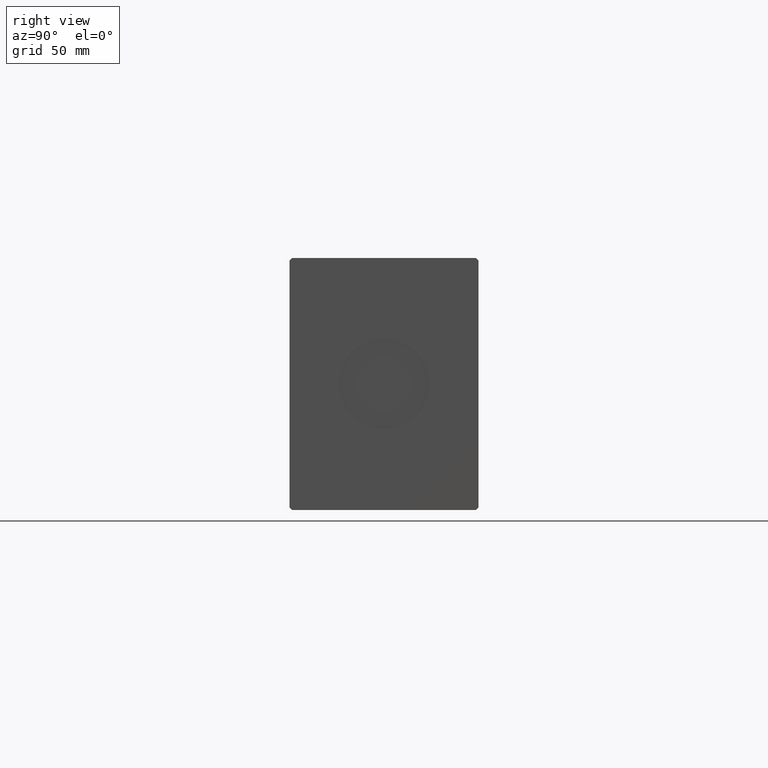
[diagram: clean part render]
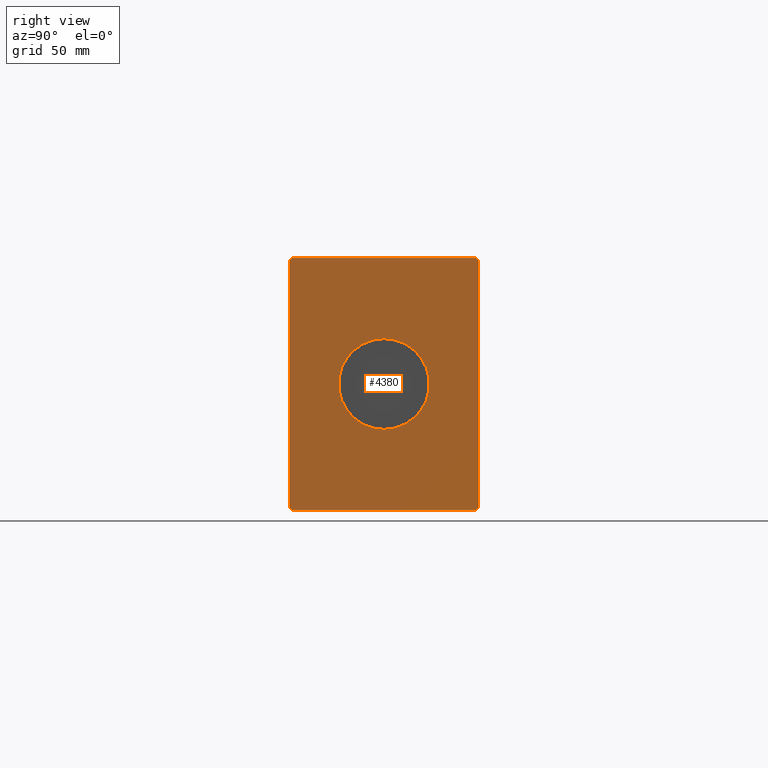
[diagram: same view with one face highlighted and labeled with its STEP entity id]
A machine part, right view. The second image highlights one B-rep face of the part: STEP entity #4380.
In plain terms, the highlighted planar face has unit normal (1, 0, 0).
Its self-contained STEP definition (entity closure, byte-faithful):
#470 = VERTEX_POINT ( 'NONE', #20750 ) ;
#496 = EDGE_LOOP ( 'NONE', ( #25397, #21045, #35513, #5297, #35614, #37641, #6014, #15157 ) ) ;
#1237 = FACE_OUTER_BOUND ( 'NONE', #496, .T. ) ;
#2446 = EDGE_CURVE ( 'NONE', #36813, #5976, #31207, .T. ) ;
#3912 = CARTESIAN_POINT ( 'NONE',  ( 262.0000000000000000, 36.50000000000000711, -50.00000000000000000 ) ) ;
#4378 = EDGE_LOOP ( 'NONE', ( #31203, #30687 ) ) ;
#4380 = ADVANCED_FACE ( 'NONE', ( #15079, #1237 ), #13896, .T. ) ;
#4552 = CARTESIAN_POINT ( 'NONE',  ( 262.0000000000000000, 37.50000000000000711, -49.00000000000000000 ) ) ;
#4694 = LINE ( 'NONE', #10507, #26814 ) ;
#4700 = VERTEX_POINT ( 'NONE', #15644 ) ;
#5297 = ORIENTED_EDGE ( 'NONE', *, *, #24508, .T. ) ;
#5820 = CARTESIAN_POINT ( 'NONE',  ( 262.0000000000000000, -36.50000000000001421, 49.99999999999998579 ) ) ;
#5976 = VERTEX_POINT ( 'NONE', #37366 ) ;
#6014 = ORIENTED_EDGE ( 'NONE', *, *, #38800, .T. ) ;
#6068 = DIRECTION ( 'NONE',  ( 1.000000000000000000, 0.000000000000000000, 0.000000000000000000 ) ) ;
#6364 = EDGE_CURVE ( 'NONE', #470, #8159, #29847, .T. ) ;
#7433 = VECTOR ( 'NONE', #8482, 1000.000000000000000 ) ;
#8057 = AXIS2_PLACEMENT_3D ( 'NONE', #40362, #27507, #15276 ) ;
#8159 = VERTEX_POINT ( 'NONE', #35633 ) ;
#8482 = DIRECTION ( 'NONE',  ( 0.000000000000000000, 0.000000000000000000, 1.000000000000000000 ) ) ;
#9042 = CARTESIAN_POINT ( 'NONE',  ( 262.0000000000000000, 36.50000000000000711, -50.00000000000000000 ) ) ;
#9971 = CARTESIAN_POINT ( 'NONE',  ( 262.0000000000000000, -36.50000000000001421, 49.99999999999998579 ) ) ;
#10507 = CARTESIAN_POINT ( 'NONE',  ( 262.0000000000000000, 37.50000000000000711, 49.00000000000000000 ) ) ;
#10823 = LINE ( 'NONE', #16860, #36938 ) ;
#11538 = LINE ( 'NONE', #9042, #11645 ) ;
#11645 = VECTOR ( 'NONE', #37034, 1000.000000000000114 ) ;
#11793 = DIRECTION ( 'NONE',  ( 0.000000000000000000, 1.000000000000000000, 0.000000000000000000 ) ) ;
#12039 = DIRECTION ( 'NONE',  ( 0.000000000000000000, -0.7071067811865474617, -0.7071067811865474617 ) ) ;
#13605 = CARTESIAN_POINT ( 'NONE',  ( 262.0000000000000000, 2.204364238465235428E-15, 18.00000000000000000 ) ) ;
#13722 = EDGE_CURVE ( 'NONE', #8159, #20046, #4694, .T. ) ;
#13896 = PLANE ( 'NONE',  #8057 ) ;
#13939 = CARTESIAN_POINT ( 'NONE',  ( 262.0000000000000000, -37.50000000000001421, 48.99999999999998579 ) ) ;
#15005 = DIRECTION ( 'NONE',  ( 0.000000000000000000, 0.7071067811865500152, -0.7071067811865451302 ) ) ;
#15079 = FACE_BOUND ( 'NONE', #4378, .T. ) ;
#15157 = ORIENTED_EDGE ( 'NONE', *, *, #6364, .T. ) ;
#15207 = LINE ( 'NONE', #30543, #22959 ) ;
#15276 = DIRECTION ( 'NONE',  ( 0.000000000000000000, 0.000000000000000000, -1.000000000000000000 ) ) ;
#15356 = LINE ( 'NONE', #5820, #28112 ) ;
#15644 = CARTESIAN_POINT ( 'NONE',  ( 262.0000000000000000, -37.50000000000001421, 48.99999999999998579 ) ) ;
#16320 = VERTEX_POINT ( 'NONE', #19634 ) ;
#16648 = LINE ( 'NONE', #13939, #37779 ) ;
#16679 = CARTESIAN_POINT ( 'NONE',  ( 262.0000000000000000, 0.000000000000000000, 0.000000000000000000 ) ) ;
#16860 = CARTESIAN_POINT ( 'NONE',  ( 262.0000000000000000, 36.50000000000000711, 50.00000000000000000 ) ) ;
#17608 = LINE ( 'NONE', #40196, #30746 ) ;
#19634 = CARTESIAN_POINT ( 'NONE',  ( 262.0000000000000000, -36.50000000000000711, -50.00000000000000000 ) ) ;
#19695 = EDGE_CURVE ( 'NONE', #22473, #16320, #15207, .T. ) ;
#20046 = VERTEX_POINT ( 'NONE', #20961 ) ;
#20750 = CARTESIAN_POINT ( 'NONE',  ( 262.0000000000000000, 37.50000000000000711, -49.00000000000000000 ) ) ;
#20961 = CARTESIAN_POINT ( 'NONE',  ( 262.0000000000000000, 36.50000000000000711, 50.00000000000000000 ) ) ;
#21045 = ORIENTED_EDGE ( 'NONE', *, *, #21684, .T. ) ;
#21210 = CARTESIAN_POINT ( 'NONE',  ( 262.0000000000000000, 0.000000000000000000, 0.000000000000000000 ) ) ;
#21684 = EDGE_CURVE ( 'NONE', #20046, #32580, #10823, .T. ) ;
#22473 = VERTEX_POINT ( 'NONE', #34505 ) ;
#22640 = DIRECTION ( 'NONE',  ( 0.000000000000000000, -1.000000000000000000, -1.901066822988281457E-16 ) ) ;
#22959 = VECTOR ( 'NONE', #15005, 1000.000000000000114 ) ;
#23365 = EDGE_CURVE ( 'NONE', #5976, #36813, #27122, .T. ) ;
#23495 = DIRECTION ( 'NONE',  ( 1.000000000000000000, 0.000000000000000000, 0.000000000000000000 ) ) ;
#24508 = EDGE_CURVE ( 'NONE', #4700, #22473, #16648, .T. ) ;
#25397 = ORIENTED_EDGE ( 'NONE', *, *, #13722, .T. ) ;
#26814 = VECTOR ( 'NONE', #33099, 1000.000000000000114 ) ;
#27122 = CIRCLE ( 'NONE', #38361, 18.00000000000000000 ) ;
#27507 = DIRECTION ( 'NONE',  ( 1.000000000000000000, 0.000000000000000000, 0.000000000000000000 ) ) ;
#28112 = VECTOR ( 'NONE', #12039, 1000.000000000000114 ) ;
#29321 = DIRECTION ( 'NONE',  ( 0.000000000000000000, 0.000000000000000000, -1.000000000000000000 ) ) ;
#29847 = LINE ( 'NONE', #4552, #7433 ) ;
#29997 = VERTEX_POINT ( 'NONE', #3912 ) ;
#30543 = CARTESIAN_POINT ( 'NONE',  ( 262.0000000000000000, -37.50000000000001421, -49.00000000000000000 ) ) ;
#30687 = ORIENTED_EDGE ( 'NONE', *, *, #2446, .F. ) ;
#30746 = VECTOR ( 'NONE', #11793, 1000.000000000000000 ) ;
#31203 = ORIENTED_EDGE ( 'NONE', *, *, #23365, .F. ) ;
#31207 = CIRCLE ( 'NONE', #33178, 18.00000000000000000 ) ;
#31988 = DIRECTION ( 'NONE',  ( 0.000000000000000000, 0.000000000000000000, -1.000000000000000000 ) ) ;
#32458 = EDGE_CURVE ( 'NONE', #16320, #29997, #17608, .T. ) ;
#32580 = VERTEX_POINT ( 'NONE', #9971 ) ;
#33099 = DIRECTION ( 'NONE',  ( 0.000000000000000000, -0.7071067811865474617, 0.7071067811865474617 ) ) ;
#33178 = AXIS2_PLACEMENT_3D ( 'NONE', #21210, #6068, #33861 ) ;
#33861 = DIRECTION ( 'NONE',  ( 0.000000000000000000, 0.000000000000000000, -1.000000000000000000 ) ) ;
#34195 = EDGE_CURVE ( 'NONE', #32580, #4700, #15356, .T. ) ;
#34505 = CARTESIAN_POINT ( 'NONE',  ( 262.0000000000000000, -37.50000000000001421, -49.00000000000000000 ) ) ;
#35513 = ORIENTED_EDGE ( 'NONE', *, *, #34195, .T. ) ;
#35614 = ORIENTED_EDGE ( 'NONE', *, *, #19695, .T. ) ;
#35633 = CARTESIAN_POINT ( 'NONE',  ( 262.0000000000000000, 37.50000000000000711, 49.00000000000000000 ) ) ;
#36813 = VERTEX_POINT ( 'NONE', #13605 ) ;
#36938 = VECTOR ( 'NONE', #22640, 1000.000000000000000 ) ;
#37034 = DIRECTION ( 'NONE',  ( 0.000000000000000000, 0.7071067811865474617, 0.7071067811865474617 ) ) ;
#37366 = CARTESIAN_POINT ( 'NONE',  ( 262.0000000000000000, 0.000000000000000000, -18.00000000000000000 ) ) ;
#37641 = ORIENTED_EDGE ( 'NONE', *, *, #32458, .T. ) ;
#37779 = VECTOR ( 'NONE', #31988, 1000.000000000000000 ) ;
#38361 = AXIS2_PLACEMENT_3D ( 'NONE', #16679, #23495, #29321 ) ;
#38800 = EDGE_CURVE ( 'NONE', #29997, #470, #11538, .T. ) ;
#40196 = CARTESIAN_POINT ( 'NONE',  ( 262.0000000000000000, -36.50000000000000711, -50.00000000000000000 ) ) ;
#40362 = CARTESIAN_POINT ( 'NONE',  ( 262.0000000000000000, 0.000000000000000000, 0.000000000000000000 ) ) ;